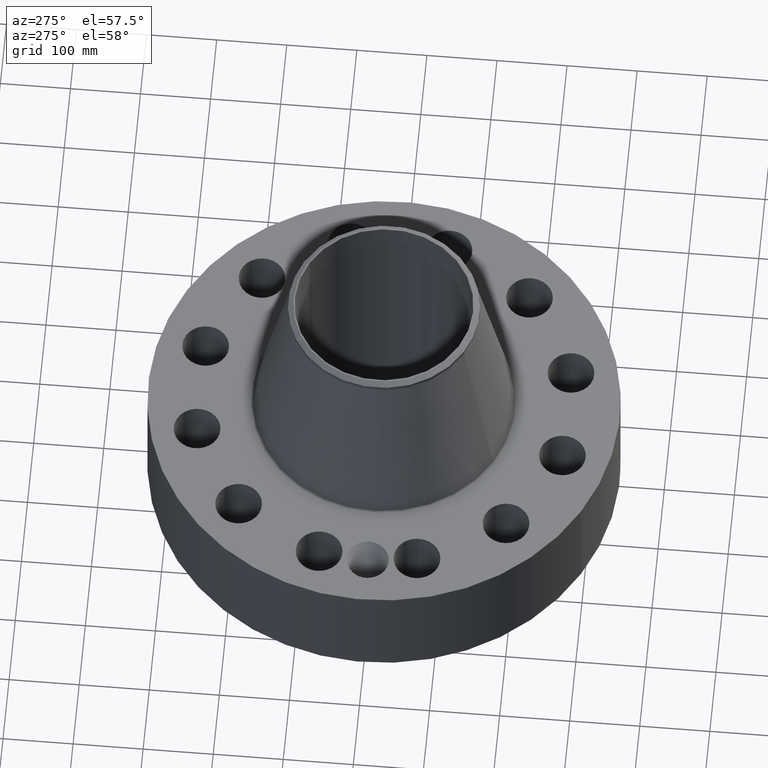
[diagram: clean part render]
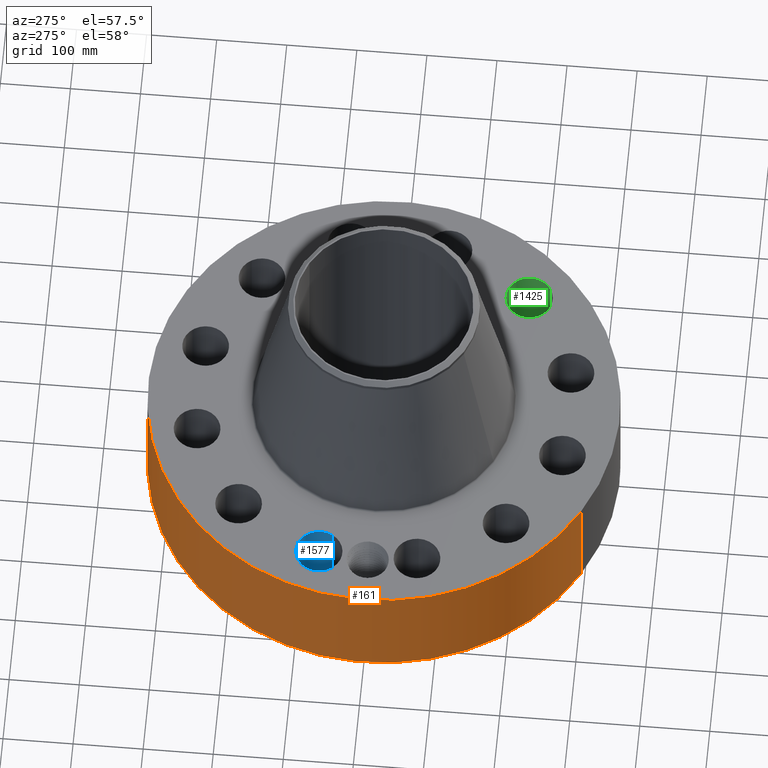
[diagram: same view with three faces highlighted in distinct colors, each labeled with its STEP entity id]
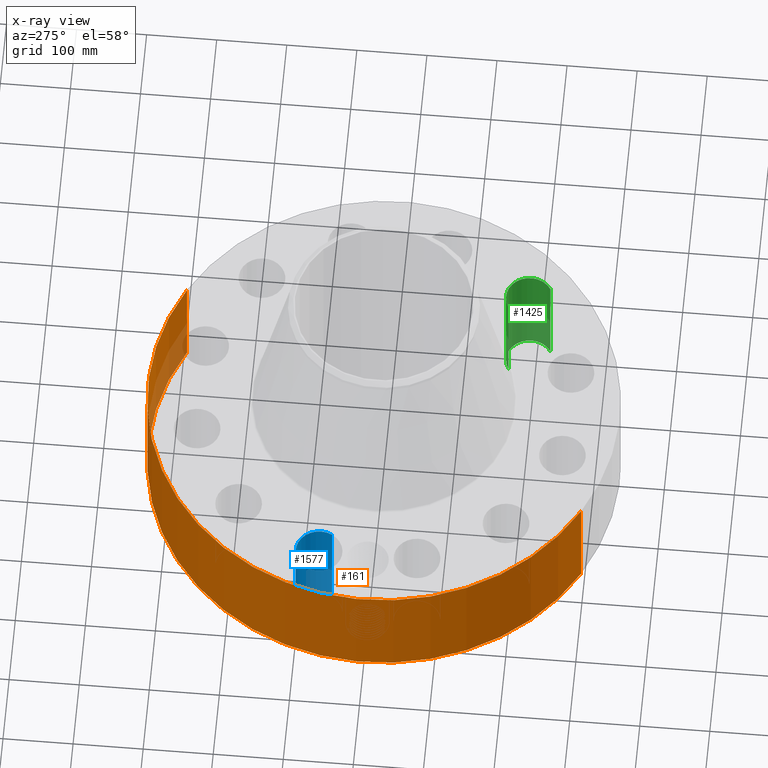
[diagram: x-ray of the same camera — body ghosted, the three highlighted faces saturated]
A machine part, auxiliary view with three faces highlighted in distinct colors.
The next image is the same camera in x-ray (body ghosted, the three faces saturated) — at least one of them is partly hidden behind the body in this view.
Their STEP definitions:

[orange] entity #161 — the highlighted cylindrical surface (partial cylindrical patch) has radius 336.55 mm, axis along (0, 0, -1).
#38=AXIS2_PLACEMENT_3D('Cylinder Axis2P3D',#35,#36,#37) ;
#42=AXIS2_PLACEMENT_3D('Circle Axis2P3D',#40,#41,$) ;
#58=AXIS2_PLACEMENT_3D('Circle Axis2P3D',#56,#57,$) ;
#35=CARTESIAN_POINT('Axis2P3D Location',(0.,0.,8.50000000003)) ;
#40=CARTESIAN_POINT('Axis2P3D Location',(0.,0.,0.250000000001)) ;
#44=CARTESIAN_POINT('Vertex',(-6.35238838653,-11.6279689451,0.250000000001)) ;
#46=CARTESIAN_POINT('Vertex',(6.35238838653,11.6279689451,0.250000000001)) ;
#49=CARTESIAN_POINT('Line Origine',(-6.35238838653,-11.6279689451,3.50000000001)) ;
#53=CARTESIAN_POINT('Vertex',(-6.35238838653,-11.6279689451,6.75000000003)) ;
#56=CARTESIAN_POINT('Axis2P3D Location',(0.,0.,6.75000000003)) ;
#60=CARTESIAN_POINT('Vertex',(6.35238838653,11.6279689451,6.75000000003)) ;
#63=CARTESIAN_POINT('Line Origine',(6.35238838653,11.6279689451,3.50000000001)) ;
#75=CARTESIAN_POINT('Control Point',(-0.000716182178096,13.2499999807,1.29411846097)) ;
#76=CARTESIAN_POINT('Control Point',(-0.0191502653086,13.2499989843,1.29408121945)) ;
#77=CARTESIAN_POINT('Control Point',(-0.0375810939781,13.2499592085,1.29260034336)) ;
#78=CARTESIAN_POINT('Control Point',(-0.0557843614552,13.2498825695,1.28969405279)) ;
#79=CARTESIAN_POINT('Vertex',(-0.000715776774679,13.2499999807,1.29411851031)) ;
#81=CARTESIAN_POINT('Vertex',(-0.0557753377726,13.2498828606,1.2896955122)) ;
#85=CARTESIAN_POINT('Control Point',(-0.0557752409463,13.2498826079,1.2896949601)) ;
#86=CARTESIAN_POINT('Control Point',(-0.0960317888566,13.2497131484,1.28519648012)) ;
#87=CARTESIAN_POINT('Control Point',(-0.135627700024,13.2493559782,1.27336881106)) ;
#88=CARTESIAN_POINT('Control Point',(-0.172076085037,13.2488825877,1.25501398008)) ;
#89=CARTESIAN_POINT('Vertex',(-0.172076085037,13.2488825877,1.25501398008)) ;
#93=CARTESIAN_POINT('Control Point',(-0.0308574974484,13.2499640685,0.531177487723)) ;
#94=CARTESIAN_POINT('Control Point',(-0.100043950925,13.249802942,0.539941754029)) ;
#95=CARTESIAN_POINT('Control Point',(-0.166894350041,13.2491956705,0.564145361276)) ;
#96=CARTESIAN_POINT('Control Point',(-0.226589153184,13.2482117099,0.602961853258)) ;
#97=CARTESIAN_POINT('Control Point',(-0.299033939274,13.2466912427,0.677002948553)) ;
#98=CARTESIAN_POINT('Control Point',(-0.343806497728,13.2455487155,0.767252961345)) ;
#99=CARTESIAN_POINT('Control Point',(-0.355258005259,13.2452407762,0.79796452058)) ;
#100=CARTESIAN_POINT('Control Point',(-0.373767359907,13.2447311356,0.869263562155)) ;
#101=CARTESIAN_POINT('Control Point',(-0.375440893888,13.2446781575,0.942604838031)) ;
#102=CARTESIAN_POINT('Control Point',(-0.371062917477,13.244805279,0.983230149686)) ;
#103=CARTESIAN_POINT('Control Point',(-0.348620721311,13.2454396498,1.07565637268)) ;
#104=CARTESIAN_POINT('Control Point',(-0.299242591331,13.2466708422,1.1570268929)) ;
#105=CARTESIAN_POINT('Control Point',(-0.262809100406,13.247490619,1.1979521355)) ;
#106=CARTESIAN_POINT('Control Point',(-0.219645572172,13.2482647566,1.23105873449)) ;
#107=CARTESIAN_POINT('Control Point',(-0.172076085037,13.2488825877,1.25501398008)) ;
#108=CARTESIAN_POINT('Vertex',(-0.0308574974484,13.2499640685,0.531177487723)) ;
#112=CARTESIAN_POINT('Control Point',(-0.0308574974484,13.2499640685,0.531177487723)) ;
#113=CARTESIAN_POINT('Control Point',(-0.0205665787994,13.2499880347,0.530872867649)) ;
#114=CARTESIAN_POINT('Control Point',(-0.010268648996,13.2500000022,0.530938766678)) ;
#115=CARTESIAN_POINT('Control Point',(2.7287835268E-006,13.2500000001,0.531374667805)) ;
#116=CARTESIAN_POINT('Vertex',(2.72878354194E-006,13.2500000001,0.531374667805)) ;
#120=CARTESIAN_POINT('Control Point',(0.192757893617,13.2485978275,0.587169898879)) ;
#121=CARTESIAN_POINT('Control Point',(0.14905642886,13.2492336535,0.561897250209)) ;
#122=CARTESIAN_POINT('Control Point',(0.10112599461,13.2497395629,0.543730098777)) ;
#123=CARTESIAN_POINT('Control Point',(0.0508093391902,13.2499999896,0.533530819167)) ;
#124=CARTESIAN_POINT('Control Point',(2.72878355035E-006,13.2500000001,0.531374667805)) ;
#125=CARTESIAN_POINT('Vertex',(0.192757893617,13.2485978275,0.587169898879)) ;
#129=CARTESIAN_POINT('Control Point',(0.192757893617,13.2485978275,0.587169898879)) ;
#130=CARTESIAN_POINT('Control Point',(0.24968121114,13.2477696328,0.620088774005)) ;
#131=CARTESIAN_POINT('Control Point',(0.29989774588,13.2467332348,0.664307981473)) ;
#132=CARTESIAN_POINT('Control Point',(0.340272602377,13.2456768452,0.71832995927)) ;
#133=CARTESIAN_POINT('Control Point',(0.384786930276,13.2444230771,0.81640868127)) ;
#134=CARTESIAN_POINT('Control Point',(0.393565265372,13.2441521437,0.921704502428)) ;
#135=CARTESIAN_POINT('Control Point',(0.391517982865,13.2442146621,0.961814118413)) ;
#136=CARTESIAN_POINT('Control Point',(0.377486119151,13.2446358495,1.0366594646)) ;
#137=CARTESIAN_POINT('Control Point',(0.345492049661,13.2455094413,1.10505084851)) ;
#138=CARTESIAN_POINT('Control Point',(0.326475931471,13.246002738,1.13546988059)) ;
#139=CARTESIAN_POINT('Control Point',(0.26461620809,13.2474708185,1.21225153122)) ;
#140=CARTESIAN_POINT('Control Point',(0.181234582875,13.2489343562,1.26546431623)) ;
#141=CARTESIAN_POINT('Control Point',(0.122123736358,13.2496537486,1.28763376551)) ;
#142=CARTESIAN_POINT('Control Point',(0.0605777054771,13.2500001183,1.29712427101)) ;
#143=CARTESIAN_POINT('Control Point',(-2.58579355541E-005,13.25,1.2941529843)) ;
#144=CARTESIAN_POINT('Vertex',(-2.58579355466E-005,13.25,1.2941529843)) ;
#148=CARTESIAN_POINT('Control Point',(-0.000715776764956,13.2499999807,1.2941185103)) ;
#149=CARTESIAN_POINT('Control Point',(-0.000370841803571,13.2499999994,1.29413607037)) ;
#150=CARTESIAN_POINT('Control Point',(-2.58579407216E-005,13.25,1.2941529843)) ;
#36=DIRECTION('Axis2P3D Direction',(0.,0.,-0.0393700787402)) ;
#37=DIRECTION('Axis2P3D XDirection',(0.0188750212049,0.0345504945626,0.)) ;
#41=DIRECTION('Axis2P3D Direction',(0.,0.,-0.0393700787402)) ;
#50=DIRECTION('Vector Direction',(0.,0.,-0.0393700787402)) ;
#57=DIRECTION('Axis2P3D Direction',(0.,0.,-0.0393700787402)) ;
#64=DIRECTION('Vector Direction',(0.,0.,-0.0393700787402)) ;
#51=VECTOR('Line Direction',#50,0.0393700787402) ;
#65=VECTOR('Line Direction',#64,0.0393700787402) ;
#69=ORIENTED_EDGE('',*,*,#48,.F.) ;
#70=ORIENTED_EDGE('',*,*,#55,.T.) ;
#71=ORIENTED_EDGE('',*,*,#62,.T.) ;
#72=ORIENTED_EDGE('',*,*,#67,.F.) ;
#153=ORIENTED_EDGE('',*,*,#83,.T.) ;
#154=ORIENTED_EDGE('',*,*,#91,.T.) ;
#155=ORIENTED_EDGE('',*,*,#110,.F.) ;
#156=ORIENTED_EDGE('',*,*,#118,.T.) ;
#157=ORIENTED_EDGE('',*,*,#127,.F.) ;
#158=ORIENTED_EDGE('',*,*,#146,.T.) ;
#159=ORIENTED_EDGE('',*,*,#151,.F.) ;
#160=FACE_BOUND('',#152,.T.) ;
#161=ADVANCED_FACE('PartBody',(#73,#160),#39,.T.) ;
#74=B_SPLINE_CURVE_WITH_KNOTS('',3,(#75,#76,#77,#78),.UNSPECIFIED.,.F.,.U.,(4,4),(34.6164759354,36.6615629765),.UNSPECIFIED.) ;
#84=B_SPLINE_CURVE_WITH_KNOTS('',3,(#85,#86,#87,#88),.UNSPECIFIED.,.F.,.U.,(4,4),(0.,4.55152621254),.UNSPECIFIED.) ;
#92=B_SPLINE_CURVE_WITH_KNOTS('',5,(#93,#94,#95,#96,#97,#98,#99,#100,#101,#102,#103,#104,#105,#106,#107),.UNSPECIFIED.,.F.,.U.,(6,3,3,3,6),(0.,12.1199799906,17.9789266807,25.3567714512,35.2572454778),.UNSPECIFIED.) ;
#111=B_SPLINE_CURVE_WITH_KNOTS('',3,(#112,#113,#114,#115),.UNSPECIFIED.,.F.,.U.,(4,4),(0.,1.0734791093),.UNSPECIFIED.) ;
#119=B_SPLINE_CURVE_WITH_KNOTS('',4,(#120,#121,#122,#123,#124),.UNSPECIFIED.,.F.,.U.,(5,5),(0.,7.07984666656),.UNSPECIFIED.) ;
#128=B_SPLINE_CURVE_WITH_KNOTS('',5,(#129,#130,#131,#132,#133,#134,#135,#136,#137,#138,#139,#140,#141,#142,#143),.UNSPECIFIED.,.F.,.U.,(6,3,3,3,6),(0.,11.5273128177,18.5849258912,24.9929542965,36.3210179243),.UNSPECIFIED.) ;
#147=B_SPLINE_CURVE_WITH_KNOTS('',2,(#148,#149,#150),.UNSPECIFIED.,.F.,.U.,(3,3),(1.02660278465,1.05239664294),.UNSPECIFIED.) ;
#43=CIRCLE('generated circle',#42,13.2500000001) ;
#59=CIRCLE('generated circle',#58,13.2500000001) ;
#39=CYLINDRICAL_SURFACE('generated cylinder',#38,13.2500000001) ;
#48=EDGE_CURVE('',#45,#47,#43,.T.) ;
#55=EDGE_CURVE('',#45,#54,#52,.F.) ;
#62=EDGE_CURVE('',#54,#61,#59,.T.) ;
#67=EDGE_CURVE('',#47,#61,#66,.F.) ;
#83=EDGE_CURVE('',#80,#82,#74,.T.) ;
#91=EDGE_CURVE('',#82,#90,#84,.T.) ;
#110=EDGE_CURVE('',#109,#90,#92,.T.) ;
#118=EDGE_CURVE('',#109,#117,#111,.T.) ;
#127=EDGE_CURVE('',#126,#117,#119,.T.) ;
#146=EDGE_CURVE('',#126,#145,#128,.T.) ;
#151=EDGE_CURVE('',#80,#145,#147,.T.) ;
#68=EDGE_LOOP('',(#69,#70,#71,#72)) ;
#152=EDGE_LOOP('',(#153,#154,#155,#156,#157,#158,#159)) ;
#73=FACE_OUTER_BOUND('',#68,.T.) ;
#52=LINE('Line',#49,#51) ;
#66=LINE('Line',#63,#65) ;
#45=VERTEX_POINT('',#44) ;
#47=VERTEX_POINT('',#46) ;
#54=VERTEX_POINT('',#53) ;
#61=VERTEX_POINT('',#60) ;
#80=VERTEX_POINT('',#79) ;
#82=VERTEX_POINT('',#81) ;
#90=VERTEX_POINT('',#89) ;
#109=VERTEX_POINT('',#108) ;
#117=VERTEX_POINT('',#116) ;
#126=VERTEX_POINT('',#125) ;
#145=VERTEX_POINT('',#144) ;

[blue] entity #1577 — the highlighted cylindrical surface (edge-blend (fillet) strip) has radius 33.274 mm, axis along (-0, 0, -1).
#374=AXIS2_PLACEMENT_3D('Circle Axis2P3D',#372,#373,$) ;
#769=AXIS2_PLACEMENT_3D('Circle Axis2P3D',#767,#768,$) ;
#1552=AXIS2_PLACEMENT_3D('Cylinder Axis2P3D',#1549,#1550,#1551) ;
#367=CARTESIAN_POINT('Vertex',(-9.11332874828,2.12190489865,0.250000000001)) ;
#369=CARTESIAN_POINT('Vertex',(-11.4125950604,3.3779998098,0.250000000001)) ;
#372=CARTESIAN_POINT('Axis2P3D Location',(-10.2629619044,2.74995235423,0.250000000001)) ;
#767=CARTESIAN_POINT('Axis2P3D Location',(-10.2629619044,2.74995235423,6.75000000003)) ;
#771=CARTESIAN_POINT('Vertex',(-11.4125950604,3.3779998098,6.75000000003)) ;
#773=CARTESIAN_POINT('Vertex',(-9.11332874828,2.12190489865,6.75000000003)) ;
#1549=CARTESIAN_POINT('Axis2P3D Location',(-10.2629619044,2.74995235423,6.74606299215)) ;
#1554=CARTESIAN_POINT('Line Origine',(-9.11332874828,2.12190489865,3.50000000001)) ;
#1559=CARTESIAN_POINT('Line Origine',(-11.4125950604,3.3779998098,3.50000000001)) ;
#373=DIRECTION('Axis2P3D Direction',(0.,0.,-0.0393700787402)) ;
#768=DIRECTION('Axis2P3D Direction',(0.,0.,-0.0393700787402)) ;
#1550=DIRECTION('Axis2P3D Direction',(-0.,0.,-0.0393700787402)) ;
#1551=DIRECTION('Axis2P3D XDirection',(-0.0345504945626,0.0188750212049,0.)) ;
#1555=DIRECTION('Vector Direction',(0.,0.,-0.0393700787402)) ;
#1560=DIRECTION('Vector Direction',(0.,0.,-0.0393700787402)) ;
#1556=VECTOR('Line Direction',#1555,0.0393700787402) ;
#1561=VECTOR('Line Direction',#1560,0.0393700787402) ;
#1572=ORIENTED_EDGE('',*,*,#1563,.F.) ;
#1573=ORIENTED_EDGE('',*,*,#376,.T.) ;
#1574=ORIENTED_EDGE('',*,*,#1558,.T.) ;
#1575=ORIENTED_EDGE('',*,*,#775,.F.) ;
#1577=ADVANCED_FACE('PartBody',(#1576),#1553,.F.) ;
#375=CIRCLE('generated circle',#374,1.31000000001) ;
#770=CIRCLE('generated circle',#769,1.31000000001) ;
#1553=CYLINDRICAL_SURFACE('generated cylinder',#1552,1.31000000001) ;
#376=EDGE_CURVE('',#370,#368,#375,.T.) ;
#775=EDGE_CURVE('',#772,#774,#770,.T.) ;
#1558=EDGE_CURVE('',#368,#774,#1557,.F.) ;
#1563=EDGE_CURVE('',#370,#772,#1562,.F.) ;
#1571=EDGE_LOOP('',(#1572,#1573,#1574,#1575)) ;
#1576=FACE_OUTER_BOUND('',#1571,.T.) ;
#1557=LINE('Line',#1554,#1556) ;
#1562=LINE('Line',#1559,#1561) ;
#368=VERTEX_POINT('',#367) ;
#370=VERTEX_POINT('',#369) ;
#772=VERTEX_POINT('',#771) ;
#774=VERTEX_POINT('',#773) ;

[green] entity #1425 — the highlighted cylindrical surface (edge-blend (fillet) strip) has radius 33.274 mm, axis along (0, -0, -1).
#275=AXIS2_PLACEMENT_3D('Circle Axis2P3D',#273,#274,$) ;
#688=AXIS2_PLACEMENT_3D('Circle Axis2P3D',#686,#687,$) ;
#1407=AXIS2_PLACEMENT_3D('Cylinder Axis2P3D',#1404,#1405,#1406) ;
#273=CARTESIAN_POINT('Axis2P3D Location',(7.51300955014,-7.51300955014,0.250000000001)) ;
#277=CARTESIAN_POINT('Vertex',(6.83142175973,-6.39428792079,0.250000000001)) ;
#279=CARTESIAN_POINT('Vertex',(8.19459734055,-8.63173117949,0.250000000001)) ;
#681=CARTESIAN_POINT('Vertex',(8.19459734055,-8.63173117949,6.75000000003)) ;
#683=CARTESIAN_POINT('Vertex',(6.83142175973,-6.39428792079,6.75000000003)) ;
#686=CARTESIAN_POINT('Axis2P3D Location',(7.51300955014,-7.51300955014,6.75000000003)) ;
#1404=CARTESIAN_POINT('Axis2P3D Location',(7.51300955014,-7.51300955014,6.74606299215)) ;
#1409=CARTESIAN_POINT('Line Origine',(6.83142175973,-6.39428792079,3.50000000001)) ;
#1414=CARTESIAN_POINT('Line Origine',(8.19459734055,-8.63173117949,3.50000000001)) ;
#274=DIRECTION('Axis2P3D Direction',(0.,0.,-0.0393700787402)) ;
#687=DIRECTION('Axis2P3D Direction',(0.,0.,-0.0393700787402)) ;
#1405=DIRECTION('Axis2P3D Direction',(0.,-0.,-0.0393700787402)) ;
#1406=DIRECTION('Axis2P3D XDirection',(0.0204840954021,-0.0336214951417,0.)) ;
#1410=DIRECTION('Vector Direction',(0.,0.,-0.0393700787402)) ;
#1415=DIRECTION('Vector Direction',(0.,0.,-0.0393700787402)) ;
#1411=VECTOR('Line Direction',#1410,0.0393700787402) ;
#1416=VECTOR('Line Direction',#1415,0.0393700787402) ;
#1420=ORIENTED_EDGE('',*,*,#1413,.F.) ;
#1421=ORIENTED_EDGE('',*,*,#281,.T.) ;
#1422=ORIENTED_EDGE('',*,*,#1418,.T.) ;
#1423=ORIENTED_EDGE('',*,*,#690,.F.) ;
#1425=ADVANCED_FACE('PartBody',(#1424),#1408,.F.) ;
#276=CIRCLE('generated circle',#275,1.31000000001) ;
#689=CIRCLE('generated circle',#688,1.31000000001) ;
#1408=CYLINDRICAL_SURFACE('generated cylinder',#1407,1.31000000001) ;
#281=EDGE_CURVE('',#278,#280,#276,.T.) ;
#690=EDGE_CURVE('',#684,#682,#689,.T.) ;
#1413=EDGE_CURVE('',#278,#684,#1412,.F.) ;
#1418=EDGE_CURVE('',#280,#682,#1417,.F.) ;
#1419=EDGE_LOOP('',(#1420,#1421,#1422,#1423)) ;
#1424=FACE_OUTER_BOUND('',#1419,.T.) ;
#1412=LINE('Line',#1409,#1411) ;
#1417=LINE('Line',#1414,#1416) ;
#278=VERTEX_POINT('',#277) ;
#280=VERTEX_POINT('',#279) ;
#682=VERTEX_POINT('',#681) ;
#684=VERTEX_POINT('',#683) ;